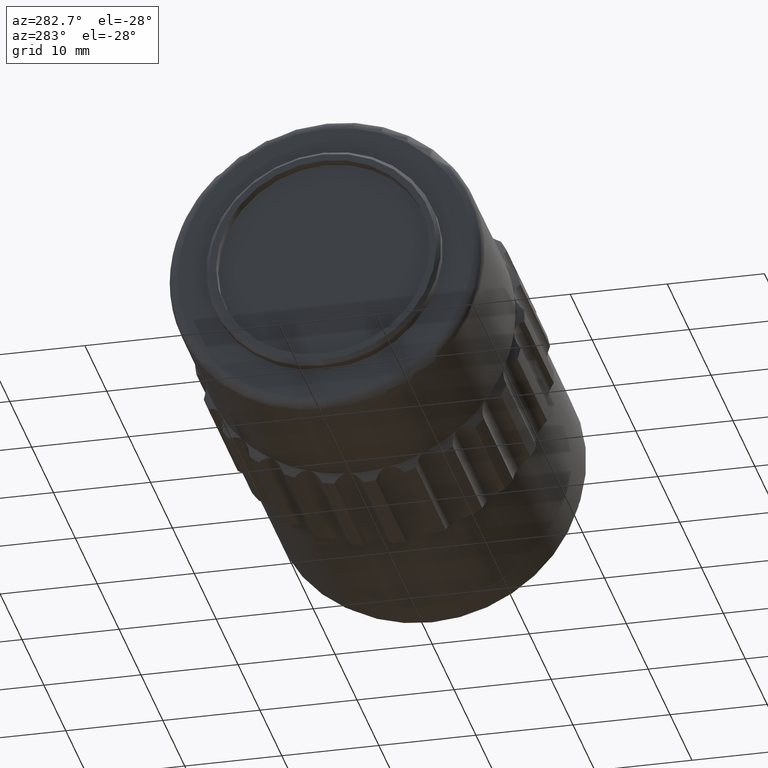
[diagram: clean part render]
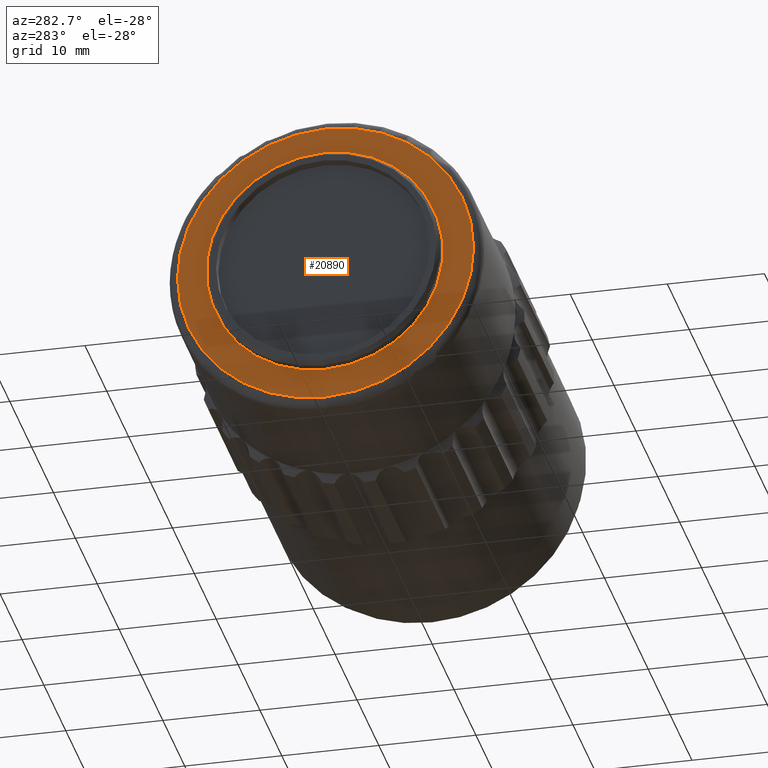
[diagram: same view with one face highlighted and labeled with its STEP entity id]
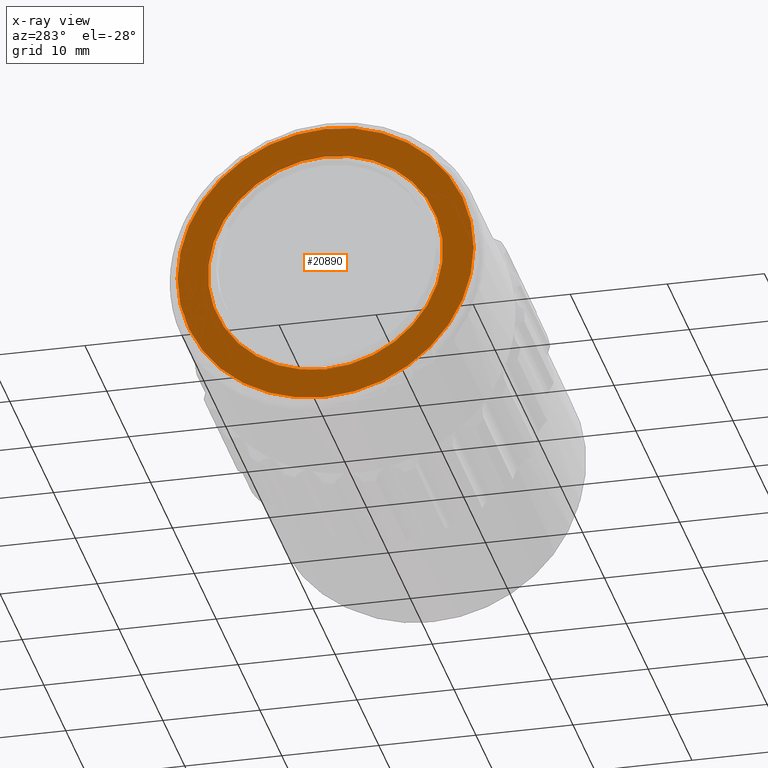
[diagram: x-ray of the same camera — body ghosted, the highlighted face saturated]
A machine part, auxiliary view. The second image highlights one B-rep face of the part: STEP entity #20890.
The next image is the same camera in x-ray: the body ghosted, the highlighted face saturated — about 0% of this face is hidden behind the body in this view.
In plain terms, the highlighted planar face has unit normal (1, 0, 0).
Its self-contained STEP definition (entity closure, byte-faithful):
#2829 = CARTESIAN_POINT ( 'NONE',  ( 1.250000000000007994, 0.000000000000000000, -15.25000000000000000 ) ) ;
#3446 = ORIENTED_EDGE ( 'NONE', *, *, #32979, .F. ) ;
#4213 = ORIENTED_EDGE ( 'NONE', *, *, #25537, .T. ) ;
#8801 = CIRCLE ( 'NONE', #32151, 15.25000000000000000 ) ;
#8903 = AXIS2_PLACEMENT_3D ( 'NONE', #15120, #9559, #27357 ) ;
#9559 = DIRECTION ( 'NONE',  ( -1.000000000000000000, -0.000000000000000000, -0.000000000000000000 ) ) ;
#9605 = CARTESIAN_POINT ( 'NONE',  ( 1.250000000000007994, 1.928818708657081739E-15, 15.25000000000000000 ) ) ;
#11931 = DIRECTION ( 'NONE',  ( 0.000000000000000000, 0.000000000000000000, -1.000000000000000000 ) ) ;
#12374 = DIRECTION ( 'NONE',  ( 1.000000000000000000, 0.000000000000000000, 0.000000000000000000 ) ) ;
#13480 = CARTESIAN_POINT ( 'NONE',  ( 1.250000000000007994, 0.000000000000000000, 0.000000000000000000 ) ) ;
#13918 = DIRECTION ( 'NONE',  ( 0.000000000000000000, 0.000000000000000000, -1.000000000000000000 ) ) ;
#14347 = CARTESIAN_POINT ( 'NONE',  ( 1.250000000000007994, 1.481822626968297304E-15, -12.09999999999999964 ) ) ;
#14786 = CARTESIAN_POINT ( 'NONE',  ( 1.250000000000007994, 0.000000000000000000, 0.000000000000000000 ) ) ;
#15120 = CARTESIAN_POINT ( 'NONE',  ( 1.250000000000007994, 0.000000000000000000, 0.000000000000000000 ) ) ;
#15807 = FACE_OUTER_BOUND ( 'NONE', #34629, .T. ) ;
#16058 = EDGE_CURVE ( 'NONE', #22162, #17634, #24024, .T. ) ;
#17065 = VERTEX_POINT ( 'NONE', #2829 ) ;
#17634 = VERTEX_POINT ( 'NONE', #14347 ) ;
#18428 = DIRECTION ( 'NONE',  ( -1.000000000000000000, -0.000000000000000000, -0.000000000000000000 ) ) ;
#20086 = DIRECTION ( 'NONE',  ( -1.000000000000000000, -0.000000000000000000, -0.000000000000000000 ) ) ;
#20890 = ADVANCED_FACE ( 'NONE', ( #15807, #32712 ), #25622, .F. ) ;
#22162 = VERTEX_POINT ( 'NONE', #34077 ) ;
#22751 = CIRCLE ( 'NONE', #8903, 12.09999999999999964 ) ;
#24024 = CIRCLE ( 'NONE', #34234, 12.09999999999999964 ) ;
#25537 = EDGE_CURVE ( 'NONE', #27663, #17065, #8801, .T. ) ;
#25622 = PLANE ( 'NONE',  #43767 ) ;
#27273 = EDGE_CURVE ( 'NONE', #17065, #27663, #41634, .T. ) ;
#27357 = DIRECTION ( 'NONE',  ( 0.000000000000000000, 0.000000000000000000, 1.000000000000000000 ) ) ;
#27663 = VERTEX_POINT ( 'NONE', #9605 ) ;
#31796 = EDGE_LOOP ( 'NONE', ( #41104, #3446 ) ) ;
#32151 = AXIS2_PLACEMENT_3D ( 'NONE', #36016, #18428, #39877 ) ;
#32584 = DIRECTION ( 'NONE',  ( 0.000000000000000000, 0.000000000000000000, 1.000000000000000000 ) ) ;
#32712 = FACE_BOUND ( 'NONE', #31796, .T. ) ;
#32979 = EDGE_CURVE ( 'NONE', #17634, #22162, #22751, .T. ) ;
#33033 = DIRECTION ( 'NONE',  ( -1.000000000000000000, -0.000000000000000000, -0.000000000000000000 ) ) ;
#34077 = CARTESIAN_POINT ( 'NONE',  ( 1.250000000000007994, 0.000000000000000000, 12.09999999999999964 ) ) ;
#34144 = ORIENTED_EDGE ( 'NONE', *, *, #27273, .T. ) ;
#34234 = AXIS2_PLACEMENT_3D ( 'NONE', #14786, #33033, #32584 ) ;
#34363 = AXIS2_PLACEMENT_3D ( 'NONE', #13480, #20086, #13918 ) ;
#34629 = EDGE_LOOP ( 'NONE', ( #34144, #4213 ) ) ;
#36016 = CARTESIAN_POINT ( 'NONE',  ( 1.250000000000007994, 0.000000000000000000, 0.000000000000000000 ) ) ;
#39568 = CARTESIAN_POINT ( 'NONE',  ( 1.250000000000007994, 12.09999999999999964, 0.000000000000000000 ) ) ;
#39877 = DIRECTION ( 'NONE',  ( 0.000000000000000000, 0.000000000000000000, -1.000000000000000000 ) ) ;
#41104 = ORIENTED_EDGE ( 'NONE', *, *, #16058, .F. ) ;
#41634 = CIRCLE ( 'NONE', #34363, 15.25000000000000000 ) ;
#43767 = AXIS2_PLACEMENT_3D ( 'NONE', #39568, #12374, #11931 ) ;